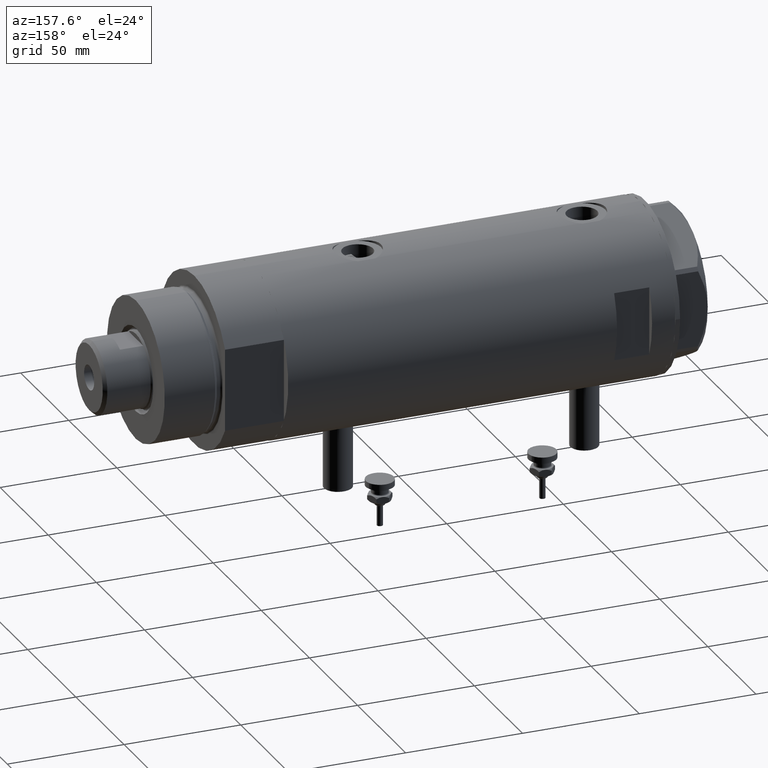
[diagram: clean part render]
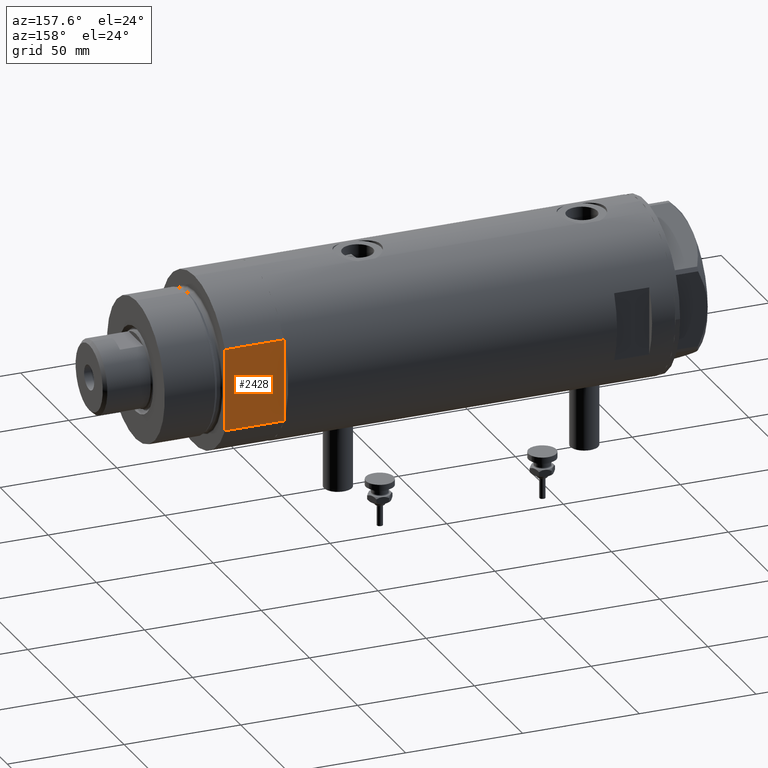
[diagram: same view with one face highlighted and labeled with its STEP entity id]
A machine part, auxiliary view. The second image highlights one B-rep face of the part: STEP entity #2428.
In plain terms, the highlighted planar face has unit normal (0, -1, -0).
Its self-contained STEP definition (entity closure, byte-faithful):
#110 = VERTEX_POINT ( 'NONE', #3234 ) ;
#252 = ORIENTED_EDGE ( 'NONE', *, *, #4597, .F. ) ;
#544 = VERTEX_POINT ( 'NONE', #936 ) ;
#676 = VECTOR ( 'NONE', #5736, 1000.000000000000000 ) ;
#703 = PLANE ( 'NONE',  #5073 ) ;
#734 = FACE_OUTER_BOUND ( 'NONE', #4205, .T. ) ;
#761 = CARTESIAN_POINT ( 'NONE',  ( 17.55704986607943496, 32.00000000000000000, 25.19999999999999929 ) ) ;
#821 = LINE ( 'NONE', #5258, #676 ) ;
#865 = VECTOR ( 'NONE', #4831, 1000.000000000000000 ) ;
#936 = CARTESIAN_POINT ( 'NONE',  ( -17.55704986607943496, 32.00000000000000000, 25.19999999999999929 ) ) ;
#1315 = CARTESIAN_POINT ( 'NONE',  ( -17.55704986607943141, 32.00000000000000000, 0.000000000000000000 ) ) ;
#2428 = ADVANCED_FACE ( 'NONE', ( #734 ), #703, .F. ) ;
#2687 = CARTESIAN_POINT ( 'NONE',  ( -17.55704986607943141, 32.00000000000000000, 0.000000000000000000 ) ) ;
#2870 = VERTEX_POINT ( 'NONE', #1315 ) ;
#3017 = CARTESIAN_POINT ( 'NONE',  ( -17.55704986607943141, 32.00000000000000000, 0.000000000000000000 ) ) ;
#3022 = ORIENTED_EDGE ( 'NONE', *, *, #3859, .T. ) ;
#3075 = LINE ( 'NONE', #3017, #865 ) ;
#3162 = CARTESIAN_POINT ( 'NONE',  ( -17.55704986607943141, 32.00000000000000000, 25.19999999999999929 ) ) ;
#3234 = CARTESIAN_POINT ( 'NONE',  ( 0.000000000000000000, 32.00000000000000000, 0.000000000000000000 ) ) ;
#3435 = VECTOR ( 'NONE', #5876, 1000.000000000000000 ) ;
#3633 = EDGE_CURVE ( 'NONE', #5595, #5114, #4054, .T. ) ;
#3772 = ORIENTED_EDGE ( 'NONE', *, *, #4408, .T. ) ;
#3859 = EDGE_CURVE ( 'NONE', #544, #5114, #4545, .T. ) ;
#4054 = LINE ( 'NONE', #4136, #3435 ) ;
#4136 = CARTESIAN_POINT ( 'NONE',  ( 17.55704986607943141, 32.00000000000000000, 0.000000000000000000 ) ) ;
#4205 = EDGE_LOOP ( 'NONE', ( #3022, #5835, #5554, #252, #3772 ) ) ;
#4223 = EDGE_CURVE ( 'NONE', #110, #5595, #3075, .T. ) ;
#4408 = EDGE_CURVE ( 'NONE', #2870, #544, #5009, .T. ) ;
#4409 = DIRECTION ( 'NONE',  ( 0.000000000000000000, -1.000000000000000000, 0.000000000000000000 ) ) ;
#4516 = DIRECTION ( 'NONE',  ( -0.000000000000000000, -0.000000000000000000, 1.000000000000000000 ) ) ;
#4528 = VECTOR ( 'NONE', #4516, 1000.000000000000000 ) ;
#4545 = LINE ( 'NONE', #3162, #5102 ) ;
#4597 = EDGE_CURVE ( 'NONE', #2870, #110, #821, .T. ) ;
#4831 = DIRECTION ( 'NONE',  ( 1.000000000000000000, 0.000000000000000000, 0.000000000000000000 ) ) ;
#4896 = CARTESIAN_POINT ( 'NONE',  ( 17.55704986607943496, 32.00000000000000000, 0.000000000000000000 ) ) ;
#5009 = LINE ( 'NONE', #2687, #4528 ) ;
#5073 = AXIS2_PLACEMENT_3D ( 'NONE', #5784, #4409, #5693 ) ;
#5102 = VECTOR ( 'NONE', #5532, 1000.000000000000000 ) ;
#5114 = VERTEX_POINT ( 'NONE', #761 ) ;
#5258 = CARTESIAN_POINT ( 'NONE',  ( -17.55704986607943141, 32.00000000000000000, 0.000000000000000000 ) ) ;
#5532 = DIRECTION ( 'NONE',  ( 1.000000000000000000, 0.000000000000000000, 0.000000000000000000 ) ) ;
#5554 = ORIENTED_EDGE ( 'NONE', *, *, #4223, .F. ) ;
#5595 = VERTEX_POINT ( 'NONE', #4896 ) ;
#5693 = DIRECTION ( 'NONE',  ( 0.000000000000000000, -0.000000000000000000, -1.000000000000000000 ) ) ;
#5736 = DIRECTION ( 'NONE',  ( 1.000000000000000000, 0.000000000000000000, 0.000000000000000000 ) ) ;
#5784 = CARTESIAN_POINT ( 'NONE',  ( -17.55704986607943141, 32.00000000000000000, 0.000000000000000000 ) ) ;
#5835 = ORIENTED_EDGE ( 'NONE', *, *, #3633, .F. ) ;
#5876 = DIRECTION ( 'NONE',  ( -0.000000000000000000, -0.000000000000000000, 1.000000000000000000 ) ) ;